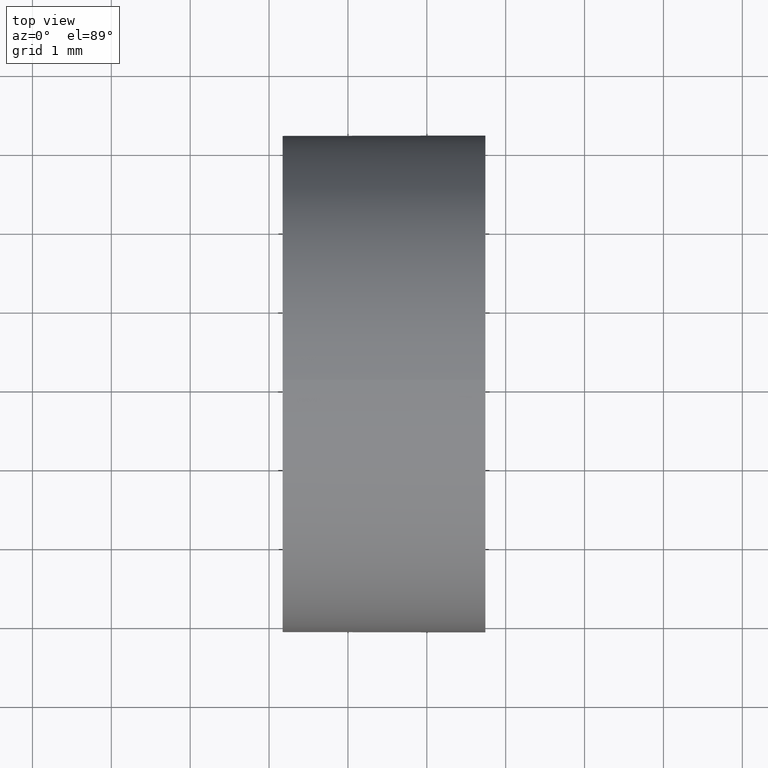
[diagram: clean part render]
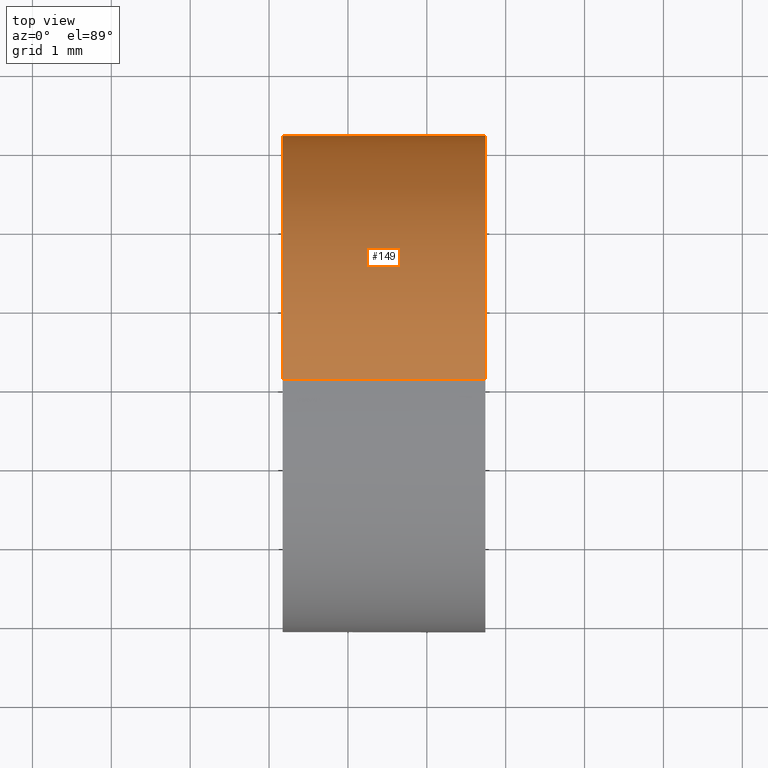
[diagram: same view with one face highlighted and labeled with its STEP entity id]
A machine part, top view. The second image highlights one B-rep face of the part: STEP entity #149.
In plain terms, the highlighted cylindrical surface (partial cylindrical patch) has radius 3.15 mm, axis along (-1, -0, -0).
Its self-contained STEP definition (entity closure, byte-faithful):
#1 = DIRECTION ( 'NONE',  ( -1.000000000000000000, -0.0000000000000000000, -0.0000000000000000000 ) ) ;
#9 = DIRECTION ( 'NONE',  ( -1.000000000000000000, -0.0000000000000000000, -0.0000000000000000000 ) ) ;
#12 = DIRECTION ( 'NONE',  ( 0.0000000000000000000, 0.0000000000000000000, 1.000000000000000000 ) ) ;
#13 = VERTEX_POINT ( 'NONE', #154 ) ;
#16 = CIRCLE ( 'NONE', #78, 3.150000000000001700 ) ;
#21 = DIRECTION ( 'NONE',  ( 0.0000000000000000000, 0.0000000000000000000, 1.000000000000000000 ) ) ;
#28 = EDGE_CURVE ( 'NONE', #13, #137, #53, .T. ) ;
#33 = LINE ( 'NONE', #42, #150 ) ;
#34 = AXIS2_PLACEMENT_3D ( 'NONE', #126, #142, #12 ) ;
#42 = CARTESIAN_POINT ( 'NONE',  ( 21.22493055706841100, 13.04452057459747900, 3.150000000000001700 ) ) ;
#45 = ORIENTED_EDGE ( 'NONE', *, *, #129, .T. ) ;
#46 = CIRCLE ( 'NONE', #140, 3.150000000000001700 ) ;
#47 = ORIENTED_EDGE ( 'NONE', *, *, #77, .F. ) ;
#51 = CARTESIAN_POINT ( 'NONE',  ( 24.74218947520227700, 16.19452057459747600, 3.857637417314163700E-016 ) ) ;
#52 = DIRECTION ( 'NONE',  ( -1.000000000000000000, -0.0000000000000000000, -0.0000000000000000000 ) ) ;
#53 = LINE ( 'NONE', #151, #76 ) ;
#54 = DIRECTION ( 'NONE',  ( 0.0000000000000000000, 0.0000000000000000000, 1.000000000000000000 ) ) ;
#76 = VECTOR ( 'NONE', #86, 1000.000000000000000 ) ;
#77 = EDGE_CURVE ( 'NONE', #156, #128, #33, .T. ) ;
#78 = AXIS2_PLACEMENT_3D ( 'NONE', #146, #91, #54 ) ;
#79 = CARTESIAN_POINT ( 'NONE',  ( 24.74218947520227700, 13.04452057459747900, 0.0000000000000000000 ) ) ;
#86 = DIRECTION ( 'NONE',  ( -1.000000000000000000, -0.0000000000000000000, -0.0000000000000000000 ) ) ;
#89 = AXIS2_PLACEMENT_3D ( 'NONE', #130, #9, #21 ) ;
#91 = DIRECTION ( 'NONE',  ( -1.000000000000000000, -0.0000000000000000000, -0.0000000000000000000 ) ) ;
#101 = CYLINDRICAL_SURFACE ( 'NONE', #89, 3.150000000000001700 ) ;
#104 = ORIENTED_EDGE ( 'NONE', *, *, #171, .T. ) ;
#116 = ORIENTED_EDGE ( 'NONE', *, *, #138, .F. ) ;
#117 = CARTESIAN_POINT ( 'NONE',  ( 24.74218947520227700, 13.04452057459747900, 3.150000000000001700 ) ) ;
#123 = ORIENTED_EDGE ( 'NONE', *, *, #28, .T. ) ;
#126 = CARTESIAN_POINT ( 'NONE',  ( 24.74218947520227700, 13.04452057459747900, 0.0000000000000000000 ) ) ;
#128 = VERTEX_POINT ( 'NONE', #153 ) ;
#129 = EDGE_CURVE ( 'NONE', #156, #175, #168, .T. ) ;
#130 = CARTESIAN_POINT ( 'NONE',  ( 21.22493055706841100, 13.04452057459747900, 0.0000000000000000000 ) ) ;
#131 = FACE_OUTER_BOUND ( 'NONE', #183, .T. ) ;
#137 = VERTEX_POINT ( 'NONE', #143 ) ;
#138 = EDGE_CURVE ( 'NONE', #128, #137, #16, .T. ) ;
#140 = AXIS2_PLACEMENT_3D ( 'NONE', #79, #52, #163 ) ;
#142 = DIRECTION ( 'NONE',  ( -1.000000000000000000, -0.0000000000000000000, -0.0000000000000000000 ) ) ;
#143 = CARTESIAN_POINT ( 'NONE',  ( 22.17218947520228100, 13.04452057459747900, -3.150000000000001700 ) ) ;
#146 = CARTESIAN_POINT ( 'NONE',  ( 22.17218947520228100, 13.04452057459747900, 0.0000000000000000000 ) ) ;
#149 = ADVANCED_FACE ( 'NONE', ( #131 ), #101, .T. ) ;
#150 = VECTOR ( 'NONE', #1, 1000.000000000000000 ) ;
#151 = CARTESIAN_POINT ( 'NONE',  ( 21.22493055706841100, 13.04452057459747900, -3.150000000000001700 ) ) ;
#153 = CARTESIAN_POINT ( 'NONE',  ( 22.17218947520228100, 13.04452057459747900, 3.150000000000001700 ) ) ;
#154 = CARTESIAN_POINT ( 'NONE',  ( 24.74218947520227700, 13.04452057459747900, -3.150000000000001700 ) ) ;
#156 = VERTEX_POINT ( 'NONE', #117 ) ;
#163 = DIRECTION ( 'NONE',  ( 0.0000000000000000000, 0.0000000000000000000, 1.000000000000000000 ) ) ;
#168 = CIRCLE ( 'NONE', #34, 3.150000000000001700 ) ;
#171 = EDGE_CURVE ( 'NONE', #175, #13, #46, .T. ) ;
#175 = VERTEX_POINT ( 'NONE', #51 ) ;
#183 = EDGE_LOOP ( 'NONE', ( #104, #123, #116, #47, #45 ) ) ;